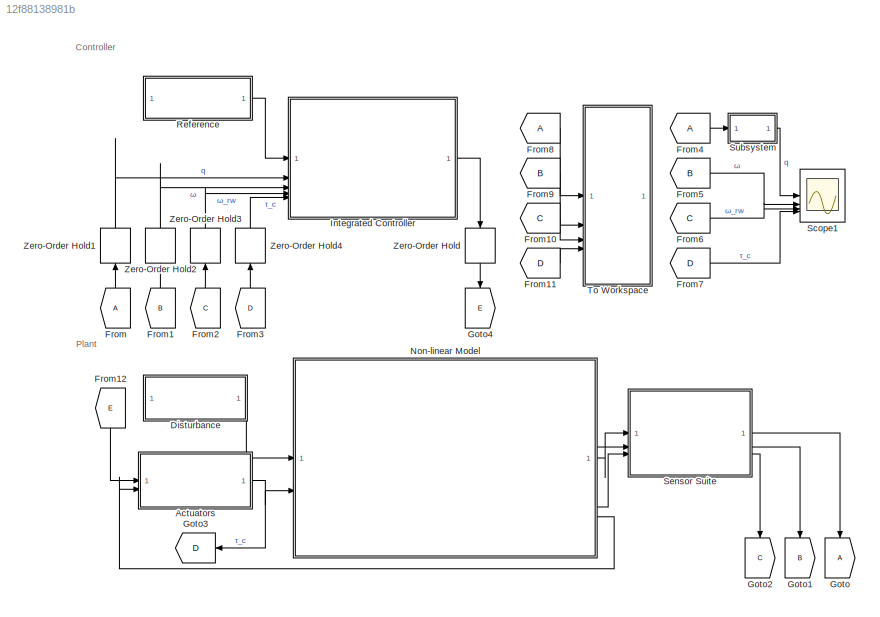
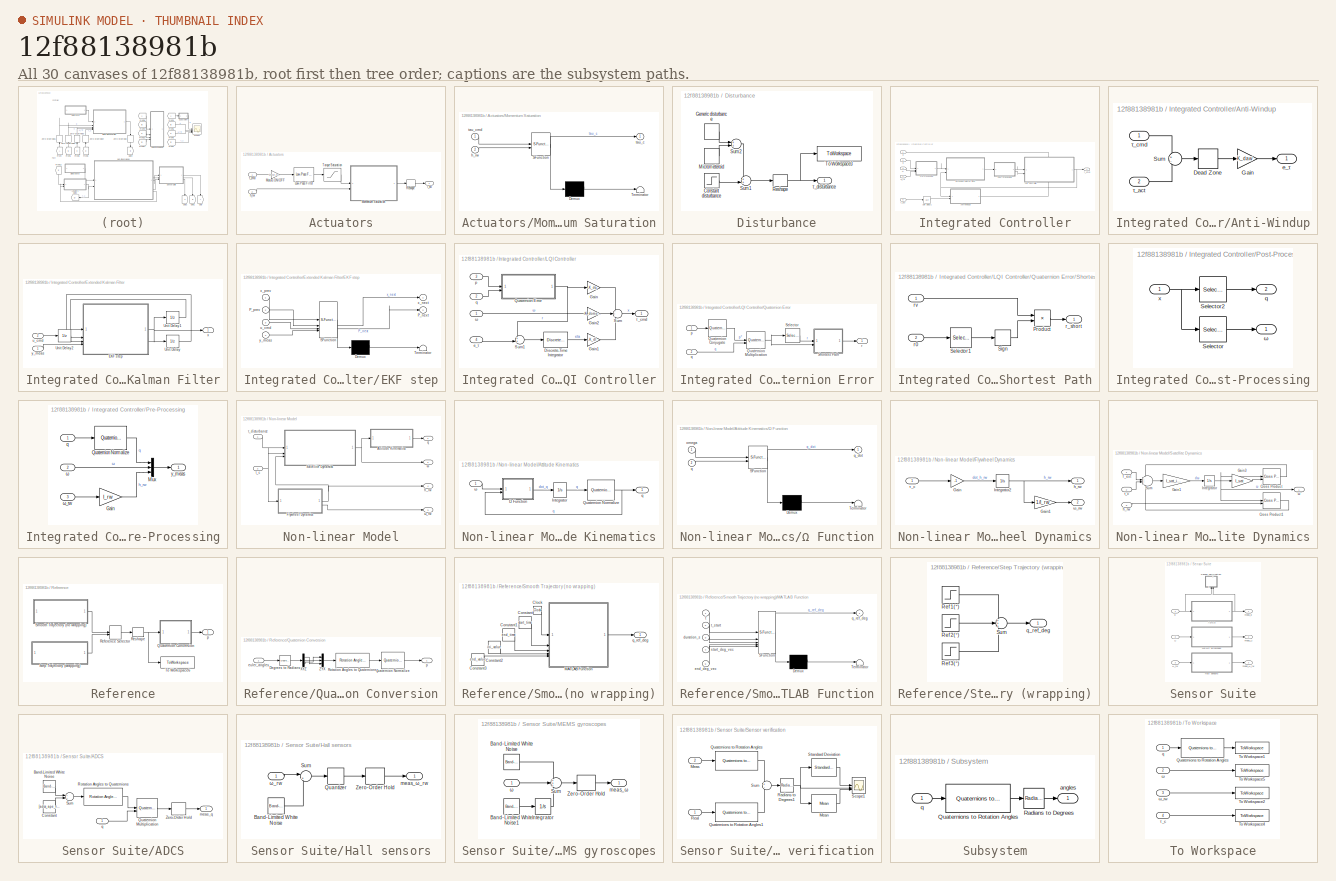
[diagram: thumbnail index - all 30 canvases of the model, root first then tree order]
MODEL slx_12f88138981b
KIND model
CONFIG AbsTol = auto
CONFIG EnableMultiTasking = off
CONFIG FixedStep = 1e-3
CONFIG MaxStep = auto
CONFIG MinStep = auto
CONFIG RelTol = 1e-3
CONFIG SampleTimeConstraint = Unconstrained
CONFIG SolverName = VariableStepAuto
CONFIG StartTime = 0.0
CONFIG StopTime = 100
BLOCK [SubSystem] Actuators
  NameLocation = top
BLOCK [Gain] Actuators/ Motors ON//OFF
  Commented = through
  Gain = motor_mask
  Multiplication = Matrix(K*u)
BLOCK [Reference] Actuators/Low-Pass Filter  REF=eeGeneralControl/Low-Pass Filter
(Discrete or Continuous)
  LibrarySourceBlock = ee_sl_lib/General Control/Low-Pass Filter\n(Discrete or Continuous)
  SourceBlock = eeGeneralControl/Low-Pass Filter\n(Discrete or Continuous)
  SourceType = Low-Pass Filter (Discrete or Continuous)
BLOCK [SubSystem] Actuators/Momentum Saturation
  ErrorFcn = Stateflow.Translate.translate
  PermitHierarchicalResolution = ExplicitOnly
  SFBlockType = MATLAB Function
  TreatAsAtomicUnit = on
BLOCK [Demux] Actuators/Momentum Saturation/ Demux 
  Outputs = 1
BLOCK [S-Function] Actuators/Momentum Saturation/ SFunction 
  EnableBusSupport = on
  FunctionName = sf_sfun
  PortCounts = [2 2]
  SFcnIsStateOwnerBlock = off
  SFunctionDeploymentMode = off
  Tag = Stateflow S-Function 2
BLOCK [Terminator] Actuators/Momentum Saturation/ Terminator 
BLOCK [Inport] Actuators/Momentum Saturation/h_rw
  Port = 2
BLOCK [Outport] Actuators/Momentum Saturation/tau_c
BLOCK [Inport] Actuators/Momentum Saturation/tau_cmd
BLOCK [Reshape] Actuators/Reshape
BLOCK [Saturate] Actuators/Torque Saturation
  LowerLimit = -0.0002
  UpperLimit = 0.0002
BLOCK [Inport] Actuators/h_rw
  Port = 2
BLOCK [Outport] Actuators/τ_act
BLOCK [Inport] Actuators/τ_cmd
BLOCK [SubSystem] Disturbance
  NameLocation = top
BLOCK [Step] Disturbance/ Constant disturbance
  After = disturb_const
  Before = [0, 0, 0]
  NameLocation = left
  SampleTime = 0
  Time = 0
BLOCK [DiscretePulseGenerator] Disturbance/ Micrometeroid
  Amplitude = disturb_force1
  NameLocation = left
  Period = 300
  PhaseDelay = t_disturb1
  PulseType = Time based
  PulseWidth = d_disturb1
BLOCK [DiscretePulseGenerator] Disturbance/Generic disturbance
  Amplitude = disturb_force2
  NameLocation = left
  Period = 100
  PhaseDelay = t_disturb2
  PulseType = Time based
  PulseWidth = d_distub2
BLOCK [Reshape] Disturbance/Reshape
BLOCK [Sum] Disturbance/Sum1
  Inputs = ++|
BLOCK [Sum] Disturbance/Sum2
BLOCK [ToWorkspace] Disturbance/To Workspace3
  FixptAsFi = on
  MaxDataPoints = inf
  SampleTime = -1
  SaveFormat = Timeseries
  VariableName = T_ext
BLOCK [Outport] Disturbance/τ_disturbance
BLOCK [From] From
  NameLocation = right
BLOCK [From] From1
  GotoTag = B
  NameLocation = right
BLOCK [From] From10
  GotoTag = C
BLOCK [From] From11
  GotoTag = D
  NameLocation = top
BLOCK [From] From12
  GotoTag = E
  NameLocation = left
BLOCK [From] From2
  GotoTag = C
  NameLocation = right
BLOCK [From] From3
  GotoTag = D
  NameLocation = right
BLOCK [From] From4
BLOCK [From] From5
  GotoTag = B
BLOCK [From] From6
  GotoTag = C
BLOCK [From] From7
  GotoTag = D
BLOCK [From] From8
BLOCK [From] From9
  GotoTag = B
BLOCK [Goto] Goto
  NameLocation = left
BLOCK [Goto] Goto1
  GotoTag = B
  NameLocation = left
BLOCK [Goto] Goto2
  GotoTag = C
  NameLocation = left
BLOCK [Goto] Goto3
  GotoTag = D
  NameLocation = top
BLOCK [Goto] Goto4
  GotoTag = E
  NameLocation = left
BLOCK [SubSystem] Integrated Controller
  NameLocation = top
  SystemSampleTime = dt
  TreatAsAtomicUnit = on
BLOCK [SubSystem] Integrated Controller/Anti-Windup
BLOCK [DeadZone] Integrated Controller/Anti-Windup/Dead Zone
  LowerValue = -0.001e-3
  UpperValue = 0.001e-3
BLOCK [Gain] Integrated Controller/Anti-Windup/Gain
  Gain = K_daw
  Multiplication = Matrix(K*u)
BLOCK [Sum] Integrated Controller/Anti-Windup/Sum
  Inputs = +-
BLOCK [Outport] Integrated Controller/Anti-Windup/e_τ
BLOCK [Inport] Integrated Controller/Anti-Windup/τ_act
  Port = 2
BLOCK [Inport] Integrated Controller/Anti-Windup/τ_cmd
BLOCK [SubSystem] Integrated Controller/Extended Kalman Filter
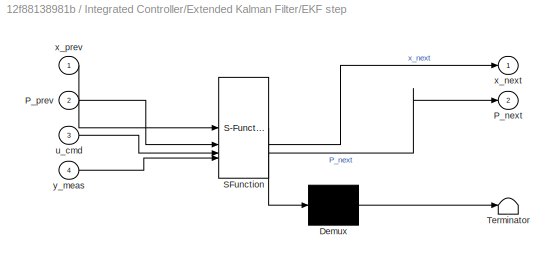
BLOCK [SubSystem] Integrated Controller/Extended Kalman Filter/EKF step
  ErrorFcn = Stateflow.Translate.translate
  PermitHierarchicalResolution = ExplicitOnly
  SFBlockType = MATLAB Function
  TreatAsAtomicUnit = on
BLOCK [Demux] Integrated Controller/Extended Kalman Filter/EKF step/ Demux 
  Outputs = 1
BLOCK [S-Function] Integrated Controller/Extended Kalman Filter/EKF step/ SFunction 
  EnableBusSupport = on
  FunctionName = sf_sfun
  Parameters = I_sat,I_sat_inv,Q_noise,R_noise,dt
  PortCounts = [4 3]
  SFcnIsStateOwnerBlock = off
  SFunctionDeploymentMode = off
  Tag = Stateflow S-Function 4
BLOCK [Terminator] Integrated Controller/Extended Kalman Filter/EKF step/ Terminator 
BLOCK [Outport] Integrated Controller/Extended Kalman Filter/EKF step/P_next
  Port = 2
BLOCK [Inport] Integrated Controller/Extended Kalman Filter/EKF step/P_prev
  Port = 2
BLOCK [Inport] Integrated Controller/Extended Kalman Filter/EKF step/u_cmd
  Port = 3
BLOCK [Outport] Integrated Controller/Extended Kalman Filter/EKF step/x_next
BLOCK [Inport] Integrated Controller/Extended Kalman Filter/EKF step/x_prev
BLOCK [Inport] Integrated Controller/Extended Kalman Filter/EKF step/y_meas
  Port = 4
BLOCK [UnitDelay] Integrated Controller/Extended Kalman Filter/Unit Delay
  HasFrameUpgradeWarning = on
  InitialCondition = 1e-3 * eye(10)
  SampleTime = -1
BLOCK [UnitDelay] Integrated Controller/Extended Kalman Filter/Unit Delay1
  HasFrameUpgradeWarning = on
  InitialCondition = [1;0;0;0; 0;0;0; 0;0;0]
  SampleTime = -1
BLOCK [UnitDelay] Integrated Controller/Extended Kalman Filter/Unit Delay2
  HasFrameUpgradeWarning = on
  InitialCondition = [0; 0; 0]
  SampleTime = -1
BLOCK [Inport] Integrated Controller/Extended Kalman Filter/u_cmd
  Port = 2
BLOCK [Outport] Integrated Controller/Extended Kalman Filter/x
BLOCK [Inport] Integrated Controller/Extended Kalman Filter/y_meas
BLOCK [SubSystem] Integrated Controller/LQI Controller
  PortSchema = {"entries":[{"content":{"sides":[{"content":{"connectorIds":["In1","In2"]},"type":"ConnectorPlacement.EquallySpacedRectSide","uuid":"2ebfe950-d43d-47a2-a975-d9ee473367e9"},{"content":{"connectorIds":["Out1"],"side":"RIGHT"},"type":"ConnectorPlacement.EquallySpacedRectSide","uuid":"47fee382-8d93-4b13-ac31-5bc139d18ea2"},{"content":{"connectorIds":["In3"],"side":"TOP"},"type":"ConnectorPlacement.Equ...<+400ch>
BLOCK [DiscreteIntegrator] Integrated Controller/LQI Controller/Discrete-Time Integrator
  ICPrevOutput = DiscIntNeverNeededParam
  ICPrevScaledInput = DiscIntNeverNeededParam
  InitialCondition = [0;0;0]
  InitialConditionSetting = Auto
  LowerSaturationLimit = -0.2e-3
  SampleTime = -1
  UpperSaturationLimit = 0.2e-3
BLOCK [Gain] Integrated Controller/LQI Controller/Gain
  Gain = -K_dq
  Multiplication = Matrix(K*u)
BLOCK [Gain] Integrated Controller/LQI Controller/Gain1
  Gain = -K_dI
  Multiplication = Matrix(K*u)
BLOCK [Gain] Integrated Controller/LQI Controller/Gain2
  Gain = -K_domega
  Multiplication = Matrix(K*u)
BLOCK [SubSystem] Integrated Controller/LQI Controller/Quaternion Error
BLOCK [Reference] Integrated Controller/LQI Controller/Quaternion Error/Quaternion Conjugate  REF=aerolibutil/Quaternion
Conjugate
  SourceBlock = aerolibutil/Quaternion\nConjugate
  SourceType = Quaternion Conjugate
BLOCK [Reference] Integrated Controller/LQI Controller/Quaternion Error/Quaternion Multiplication  REF=aerolibutil/Quaternion
Multiplication
  SourceBlock = aerolibutil/Quaternion\nMultiplication
  SourceType = Quaternion Multiplication
BLOCK [Selector] Integrated Controller/LQI Controller/Quaternion Error/Selector
  IndexOptions = Index vector (dialog)
  Indices = [2 3 4]
  InputPortWidth = 4
  OutputSizes = 1
BLOCK [SubSystem] Integrated Controller/LQI Controller/Quaternion Error/Shortest Path
BLOCK [Product] Integrated Controller/LQI Controller/Quaternion Error/Shortest Path/Product
BLOCK [Selector] Integrated Controller/LQI Controller/Quaternion Error/Shortest Path/Selector1
  IndexOptions = Index vector (dialog)
  Indices = [1]
  InputPortWidth = 4
  OutputSizes = 1
BLOCK [Signum] Integrated Controller/LQI Controller/Quaternion Error/Shortest Path/Sign
BLOCK [Inport] Integrated Controller/LQI Controller/Quaternion Error/Shortest Path/r0
  Port = 2
BLOCK [Outport] Integrated Controller/LQI Controller/Quaternion Error/Shortest Path/r_short
BLOCK [Inport] Integrated Controller/LQI Controller/Quaternion Error/Shortest Path/rv
BLOCK [Inport] Integrated Controller/LQI Controller/Quaternion Error/p
BLOCK [Inport] Integrated Controller/LQI Controller/Quaternion Error/q
  Port = 2
BLOCK [Outport] Integrated Controller/LQI Controller/Quaternion Error/r
BLOCK [Sum] Integrated Controller/LQI Controller/Sum
  Inputs = +++
BLOCK [Sum] Integrated Controller/LQI Controller/Sum1
  Inputs = ++|
BLOCK [Inport] Integrated Controller/LQI Controller/e_τ
  Port = 4
BLOCK [Inport] Integrated Controller/LQI Controller/p
  Port = 3
BLOCK [Inport] Integrated Controller/LQI Controller/q
  Port = 2
BLOCK [Outport] Integrated Controller/LQI Controller/τ_cmd
BLOCK [Inport] Integrated Controller/LQI Controller/ω
BLOCK [SubSystem] Integrated Controller/Post-Processing
BLOCK [Selector] Integrated Controller/Post-Processing/Selector
  IndexOptions = Index vector (dialog)
  Indices = [5 6 7]
  InputPortWidth = 10
  OutputSizes = 1
BLOCK [Selector] Integrated Controller/Post-Processing/Selector2
  IndexOptions = Index vector (dialog)
  Indices = [1 2 3 4]
  InputPortWidth = 10
  OutputSizes = 1
BLOCK [Outport] Integrated Controller/Post-Processing/q
  Port = 2
BLOCK [Inport] Integrated Controller/Post-Processing/x
  NameLocation = top
BLOCK [Outport] Integrated Controller/Post-Processing/ω
BLOCK [SubSystem] Integrated Controller/Pre-Processing
BLOCK [Gain] Integrated Controller/Pre-Processing/Gain
  Gain = I_rw
BLOCK [Mux] Integrated Controller/Pre-Processing/Mux
  DisplayOption = bar
  Inputs = 3
BLOCK [Reference] Integrated Controller/Pre-Processing/Quaternion Normalize  REF=sharedutil/Quaternion
Normalize
  LibrarySourceBlock = aerolibutil/Quaternion\nNormalize
  SourceBlock = sharedutil/Quaternion\nNormalize
  SourceType = Quaternion Normalize
BLOCK [Inport] Integrated Controller/Pre-Processing/q
BLOCK [Outport] Integrated Controller/Pre-Processing/y_meas
BLOCK [Inport] Integrated Controller/Pre-Processing/ω
  Port = 2
BLOCK [Inport] Integrated Controller/Pre-Processing/ω_rw
  Port = 3
BLOCK [UnitDelay] Integrated Controller/Unit Delay1
  HasFrameUpgradeWarning = on
  SampleTime = -1
BLOCK [Inport] Integrated Controller/p
BLOCK [Inport] Integrated Controller/q
  Port = 2
BLOCK [Inport] Integrated Controller/τ_act
  Port = 5
BLOCK [Outport] Integrated Controller/τ_cmd
BLOCK [Inport] Integrated Controller/ω
  Port = 3
BLOCK [Inport] Integrated Controller/ω_rw
  Port = 4
BLOCK [SubSystem] Non-linear Model
BLOCK [SubSystem] Non-linear Model/Attitude Kinematics
BLOCK [Integrator] Non-linear Model/Attitude Kinematics/Integrator
  InitialCondition = quat0
BLOCK [Reference] Non-linear Model/Attitude Kinematics/Quaternion Normalize  REF=sharedutil/Quaternion
Normalize
  LibrarySourceBlock = aerolibutil/Quaternion\nNormalize
  SourceBlock = sharedutil/Quaternion\nNormalize
  SourceType = Quaternion Normalize
BLOCK [Outport] Non-linear Model/Attitude Kinematics/q
BLOCK [SubSystem] Non-linear Model/Attitude Kinematics/Ω Function
  ErrorFcn = Stateflow.Translate.translate
  PermitHierarchicalResolution = ExplicitOnly
  SFBlockType = MATLAB Function
  TreatAsAtomicUnit = on
BLOCK [Demux] Non-linear Model/Attitude Kinematics/Ω Function/ Demux 
  Outputs = 1
BLOCK [S-Function] Non-linear Model/Attitude Kinematics/Ω Function/ SFunction 
  EnableBusSupport = on
  FunctionName = sf_sfun
  PortCounts = [2 2]
  SFcnIsStateOwnerBlock = off
  SFunctionDeploymentMode = off
  Tag = Stateflow S-Function 1
BLOCK [Terminator] Non-linear Model/Attitude Kinematics/Ω Function/ Terminator 
BLOCK [Inport] Non-linear Model/Attitude Kinematics/Ω Function/omega
BLOCK [Inport] Non-linear Model/Attitude Kinematics/Ω Function/q
  Port = 2
BLOCK [Outport] Non-linear Model/Attitude Kinematics/Ω Function/q_dot
BLOCK [Inport] Non-linear Model/Attitude Kinematics/ω
BLOCK [SubSystem] Non-linear Model/Flywheel Dynamics
BLOCK [Gain] Non-linear Model/Flywheel Dynamics/Gain
  Gain = -1
BLOCK [Gain] Non-linear Model/Flywheel Dynamics/Gain1
  Gain = 1/I_rw
BLOCK [Integrator] Non-linear Model/Flywheel Dynamics/Integrator2
  InitialCondition = h_rw0
BLOCK [Outport] Non-linear Model/Flywheel Dynamics/h_rw
BLOCK [Inport] Non-linear Model/Flywheel Dynamics/τ_c
BLOCK [Outport] Non-linear Model/Flywheel Dynamics/ω_rw
  Port = 2
BLOCK [SubSystem] Non-linear Model/Satellite Dynamics
BLOCK [Reference] Non-linear Model/Satellite Dynamics/Cross Product  REF=matrix_library/Cross Product
  LibrarySourceBlock = simulink/Matrix\nOperations/Cross Product
  SourceBlock = matrix_library/Cross Product
  SourceType = CrossProduct
BLOCK [Reference] Non-linear Model/Satellite Dynamics/Cross Product1  REF=matrix_library/Cross Product
  LibrarySourceBlock = simulink/Matrix\nOperations/Cross Product
  SourceBlock = matrix_library/Cross Product
  SourceType = CrossProduct
BLOCK [Gain] Non-linear Model/Satellite Dynamics/Gain1
  Gain = I_sat_inv
  Multiplication = Matrix(K*u)
BLOCK [Gain] Non-linear Model/Satellite Dynamics/Gain3
  Gain = I_sat
  Multiplication = Matrix(K*u)
BLOCK [Integrator] Non-linear Model/Satellite Dynamics/Integrator
  InitialCondition = omega0
BLOCK [Sum] Non-linear Model/Satellite Dynamics/Sum
  Inputs = -++-
BLOCK [Inport] Non-linear Model/Satellite Dynamics/T_ext
BLOCK [Inport] Non-linear Model/Satellite Dynamics/h_rw
  Port = 3
BLOCK [Inport] Non-linear Model/Satellite Dynamics/τ_c
  Port = 2
BLOCK [Outport] Non-linear Model/Satellite Dynamics/ω
BLOCK [Outport] Non-linear Model/h_rw
  Port = 4
BLOCK [Outport] Non-linear Model/q
BLOCK [Inport] Non-linear Model/τ_c
  Port = 2
BLOCK [Inport] Non-linear Model/τ_disturbance
BLOCK [Outport] Non-linear Model/ω
  Port = 2
BLOCK [Outport] Non-linear Model/ω_rw
  Port = 3
BLOCK [SubSystem] Reference
  NameLocation = top
BLOCK [SubSystem] Reference/Quaternion Conversion
BLOCK [Reference] Reference/Quaternion Conversion/Degrees to Radians  REF=simulink_extras/Transformations/Degrees to
Radians
  SourceBlock = simulink_extras/Transformations/Degrees to\nRadians
  SourceType = DegreesToRadians
BLOCK [Reference] Reference/Quaternion Conversion/Quaternion Normalize  REF=sharedutil/Quaternion
Normalize
  LibrarySourceBlock = aerolibutil/Quaternion\nNormalize
  SourceBlock = sharedutil/Quaternion\nNormalize
  SourceType = Quaternion Normalize
BLOCK [Reference] Reference/Quaternion Conversion/Rotation Angles to Quaternions  REF=sharedtransform/Rotation Angles to Quaternions
  AttributesFormatString = Rotation Order: %<rotationOrder>
  LibrarySourceBlock = aerolibtransform2/Rotation Angles to Quaternions
  SourceBlock = sharedtransform/Rotation Angles to Quaternions
  SourceType = Ang2Quat
BLOCK [Demux] Reference/Quaternion Conversion/XYZ
  NameLocation = top
  Outputs = 3
BLOCK [Mux] Reference/Quaternion Conversion/ZYX
  DisplayOption = bar
  Inputs = 3
  NameLocation = top
BLOCK [Inport] Reference/Quaternion Conversion/euler_angles
BLOCK [Outport] Reference/Quaternion Conversion/p
BLOCK [ManualSwitch] Reference/Reference Selector
  CurrentSetting = 0
  NameLocation = top
BLOCK [Reshape] Reference/Reshape
BLOCK [SubSystem] Reference/Smooth Trajectory (no wrapping)
BLOCK [Clock] Reference/Smooth Trajectory (no wrapping)/Clock
BLOCK [Constant] Reference/Smooth Trajectory (no wrapping)/Constant
  Value = start_time
BLOCK [Constant] Reference/Smooth Trajectory (no wrapping)/Constant1
  Value = end_time
BLOCK [Constant] Reference/Smooth Trajectory (no wrapping)/Constant2
  Value = ini_value
BLOCK [Constant] Reference/Smooth Trajectory (no wrapping)/Constant3
  Value = end_value
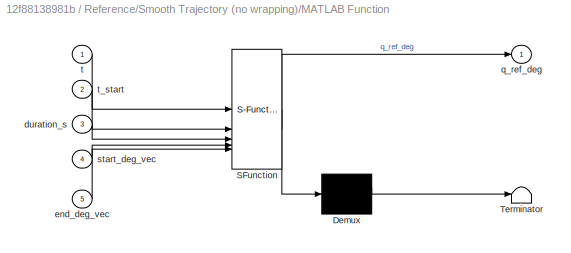
BLOCK [SubSystem] Reference/Smooth Trajectory (no wrapping)/MATLAB Function
  ErrorFcn = Stateflow.Translate.translate
  PermitHierarchicalResolution = ExplicitOnly
  SFBlockType = MATLAB Function
  TreatAsAtomicUnit = on
BLOCK [Demux] Reference/Smooth Trajectory (no wrapping)/MATLAB Function/ Demux 
  Outputs = 1
BLOCK [S-Function] Reference/Smooth Trajectory (no wrapping)/MATLAB Function/ SFunction 
  EnableBusSupport = on
  FunctionName = sf_sfun
  PortCounts = [5 2]
  SFcnIsStateOwnerBlock = off
  SFunctionDeploymentMode = off
  Tag = Stateflow S-Function 6
BLOCK [Terminator] Reference/Smooth Trajectory (no wrapping)/MATLAB Function/ Terminator 
BLOCK [Inport] Reference/Smooth Trajectory (no wrapping)/MATLAB Function/duration_s
  Port = 3
BLOCK [Inport] Reference/Smooth Trajectory (no wrapping)/MATLAB Function/end_deg_vec
  Port = 5
BLOCK [Outport] Reference/Smooth Trajectory (no wrapping)/MATLAB Function/q_ref_deg
BLOCK [Inport] Reference/Smooth Trajectory (no wrapping)/MATLAB Function/start_deg_vec
  Port = 4
BLOCK [Inport] Reference/Smooth Trajectory (no wrapping)/MATLAB Function/t
BLOCK [Inport] Reference/Smooth Trajectory (no wrapping)/MATLAB Function/t_start
  Port = 2
BLOCK [Outport] Reference/Smooth Trajectory (no wrapping)/q_ref_deg
BLOCK [SubSystem] Reference/Step Trajectory (wrapping)
BLOCK [Step] Reference/Step Trajectory (wrapping)/Ref 1(°)
  After = end_step1
  Before = ini_step1
  SampleTime = 0
  Time = t_step1
BLOCK [Step] Reference/Step Trajectory (wrapping)/Ref 2(°)
  After = end_step2
  Before = ini_step2
  SampleTime = 0
  Time = t_step2
BLOCK [Step] Reference/Step Trajectory (wrapping)/Ref 3(°)
  After = end_step3
  Before = ini_step3
  SampleTime = 0
  Time = t_step3
BLOCK [Sum] Reference/Step Trajectory (wrapping)/Sum
  Inputs = +++
BLOCK [Outport] Reference/Step Trajectory (wrapping)/q_ref_deg
BLOCK [ToWorkspace] Reference/To Workspace6
  FixptAsFi = on
  MaxDataPoints = inf
  SampleTime = -1
  SaveFormat = Timeseries
  VariableName = ref
BLOCK [Outport] Reference/p
BLOCK [Scope] Scope1
  Floating = off
  NumInputPorts = 4
  ScopeSpecificationString = Simulink.scopes.TimeScopeBlockCfg('CurrentConfiguration', extmgr.ConfigurationSet(extmgr.Configuration('Core','General UI',true,'FigureColor',[1 1 1]),extmgr.Configuration('Core','Source UI',true),extmgr.Configuration('Sources','WiredSimulink',true,'DataLoggingVariableName','ScopeData1'),extmgr.Configuration('Visuals','Time Domain',true,'SerializedDisplays',{struct('MinYLimReal','-224.99997','MaxY...<+5181ch>
BLOCK [SubSystem] Sensor Suite
  NameLocation = top
  SystemSampleTime = 0.001
BLOCK [SubSystem] Sensor Suite/ADCS
BLOCK [Reference] Sensor Suite/ADCS/Band-Limited White Noise  REF=simulink/Sources/Band-Limited
White Noise
  SourceBlock = simulink/Sources/Band-Limited\nWhite Noise
  SourceType = Band-Limited White Noise.
BLOCK [Constant] Sensor Suite/ADCS/Constant
  Value = [adcs_ape_rad; adcs_ape_rad; adcs_ape_rad]
BLOCK [Reference] Sensor Suite/ADCS/Quaternion Multiplication  REF=aerolibutil/Quaternion
Multiplication
  SourceBlock = aerolibutil/Quaternion\nMultiplication
  SourceType = Quaternion Multiplication
BLOCK [Reference] Sensor Suite/ADCS/Rotation Angles to Quaternions  REF=sharedtransform/Rotation Angles to Quaternions
  AttributesFormatString = Rotation Order: %<rotationOrder>
  LibrarySourceBlock = aerolibtransform2/Rotation Angles to Quaternions
  SourceBlock = sharedtransform/Rotation Angles to Quaternions
  SourceType = Ang2Quat
BLOCK [Sum] Sensor Suite/ADCS/Sum
BLOCK [ZeroOrderHold] Sensor Suite/ADCS/Zero-Order Hold
  SampleTime = adcs_sample_time
BLOCK [Outport] Sensor Suite/ADCS/meas_q
BLOCK [Inport] Sensor Suite/ADCS/q
BLOCK [SubSystem] Sensor Suite/Hall sensors
BLOCK [Reference] Sensor Suite/Hall sensors/Band-Limited White Noise  REF=simulink/Sources/Band-Limited
White Noise
  SourceBlock = simulink/Sources/Band-Limited\nWhite Noise
  SourceType = Band-Limited White Noise.
BLOCK [Quantizer] Sensor Suite/Hall sensors/Quantizer
  QuantizationInterval = rw_quantization_interval
BLOCK [Sum] Sensor Suite/Hall sensors/Sum
  Inputs = |++
BLOCK [ZeroOrderHold] Sensor Suite/Hall sensors/Zero-Order Hold
  SampleTime = rw_sample_time
BLOCK [Outport] Sensor Suite/Hall sensors/meas_ω_rw
BLOCK [Inport] Sensor Suite/Hall sensors/ω_rw
BLOCK [SubSystem] Sensor Suite/MEMS gyroscopes
BLOCK [Reference] Sensor Suite/MEMS gyroscopes/Band-Limited White Noise  REF=simulink/Sources/Band-Limited
White Noise
  SourceBlock = simulink/Sources/Band-Limited\nWhite Noise
  SourceType = Band-Limited White Noise.
BLOCK [Reference] Sensor Suite/MEMS gyroscopes/Band-Limited White Noise1  REF=simulink/Sources/Band-Limited
White Noise
  SourceBlock = simulink/Sources/Band-Limited\nWhite Noise
  SourceType = Band-Limited White Noise.
BLOCK [Integrator] Sensor Suite/MEMS gyroscopes/Integrator
  InitialCondition = [0, 0, 0]
BLOCK [Sum] Sensor Suite/MEMS gyroscopes/Sum
  Inputs = +++
BLOCK [ZeroOrderHold] Sensor Suite/MEMS gyroscopes/Zero-Order Hold
  SampleTime = gyro_sample_time
BLOCK [Outport] Sensor Suite/MEMS gyroscopes/meas_ω
BLOCK [Inport] Sensor Suite/MEMS gyroscopes/ω
BLOCK [SubSystem] Sensor Suite/Sensor verification
  NameLocation = top
BLOCK [Reference] Sensor Suite/Sensor verification/Mean  REF=dspstat3/Mean
  SourceBlock = dspstat3/Mean
  SourceType = Mean
  UserDataPersistent = on
BLOCK [Inport] Sensor Suite/Sensor verification/Meas
  Port = 2
BLOCK [Reference] Sensor Suite/Sensor verification/Quaternions to Rotation Angles  REF=sharedtransform/Quaternions to Rotation Angles
  AttributesFormatString = Rotation Order: %<rotationOrder>
  LibrarySourceBlock = aerolibtransform2/Quaternions to Rotation Angles
  SourceBlock = sharedtransform/Quaternions to Rotation Angles
  SourceType = Quat2Ang
BLOCK [Reference] Sensor Suite/Sensor verification/Quaternions to Rotation Angles1  REF=sharedtransform/Quaternions to Rotation Angles
  AttributesFormatString = Rotation Order: %<rotationOrder>
  LibrarySourceBlock = aerolibtransform2/Quaternions to Rotation Angles
  SourceBlock = sharedtransform/Quaternions to Rotation Angles
  SourceType = Quat2Ang
BLOCK [Reference] Sensor Suite/Sensor verification/Radians to Degrees1  REF=simulink_extras/Transformations/Radians
to Degrees
  SourceBlock = simulink_extras/Transformations/Radians\nto Degrees
  SourceType = RadiansToDegrees
BLOCK [Inport] Sensor Suite/Sensor verification/Real
  NameLocation = top
BLOCK [Scope] Sensor Suite/Sensor verification/Scope1
  Floating = off
  NumInputPorts = 3
  ScopeSpecificationString = Simulink.scopes.TimeScopeBlockCfg('CurrentConfiguration', extmgr.ConfigurationSet(extmgr.Configuration('Core','General UI',true,'FigureColor',[1 1 1]),extmgr.Configuration('Core','Source UI',true),extmgr.Configuration('Sources','WiredSimulink',true,'DataLoggingVariableName','ScopeData2'),extmgr.Configuration('Visuals','Time Domain',true,'SerializedDisplays',{struct('MinYLimReal','-0.00456','MaxYLi...<+3585ch>
BLOCK [Reference] Sensor Suite/Sensor verification/Standard Deviation  REF=dspstat3/Standard
Deviation
  SourceBlock = dspstat3/Standard\nDeviation
  SourceType = Standard Deviation
  UserDataPersistent = on
BLOCK [Sum] Sensor Suite/Sensor verification/Sum
  Inputs = +-
BLOCK [Outport] Sensor Suite/meas_q
BLOCK [Outport] Sensor Suite/meas_ω
  Port = 2
BLOCK [Outport] Sensor Suite/meas_ω_rw
  Port = 3
BLOCK [Inport] Sensor Suite/q
BLOCK [Inport] Sensor Suite/ω
  Port = 2
BLOCK [Inport] Sensor Suite/ω_rw
  Port = 3
BLOCK [SubSystem] Subsystem
BLOCK [Reference] Subsystem/Quaternions to Rotation Angles  REF=sharedtransform/Quaternions to Rotation Angles
  AttributesFormatString = Rotation Order: %<rotationOrder>
  LibrarySourceBlock = aerolibtransform2/Quaternions to Rotation Angles
  SourceBlock = sharedtransform/Quaternions to Rotation Angles
  SourceType = Quat2Ang
BLOCK [Reference] Subsystem/Radians to Degrees  REF=simulink_extras/Transformations/Radians
to Degrees
  SourceBlock = simulink_extras/Transformations/Radians\nto Degrees
  SourceType = RadiansToDegrees
BLOCK [Outport] Subsystem/angles
BLOCK [Inport] Subsystem/q
BLOCK [SubSystem] To Workspace
BLOCK [Reference] To Workspace/Quaternions to Rotation Angles  REF=sharedtransform/Quaternions to Rotation Angles
  AttributesFormatString = Rotation Order: %<rotationOrder>
  LibrarySourceBlock = aerolibtransform2/Quaternions to Rotation Angles
  SourceBlock = sharedtransform/Quaternions to Rotation Angles
  SourceType = Quat2Ang
BLOCK [ToWorkspace] To Workspace/To Workspace1
  FixptAsFi = on
  MaxDataPoints = inf
  SampleTime = -1
  SaveFormat = Timeseries
  VariableName = angles
BLOCK [ToWorkspace] To Workspace/To Workspace2
  FixptAsFi = on
  MaxDataPoints = inf
  NameLocation = right
  SampleTime = -1
  SaveFormat = Timeseries
  VariableName = omega_rw
BLOCK [ToWorkspace] To Workspace/To Workspace4
  FixptAsFi = on
  MaxDataPoints = inf
  SampleTime = -1
  SaveFormat = Timeseries
  VariableName = tau_c
BLOCK [ToWorkspace] To Workspace/To Workspace5
  FixptAsFi = on
  MaxDataPoints = inf
  NameLocation = right
  SampleTime = -1
  SaveFormat = Timeseries
  VariableName = omega_sat
BLOCK [Inport] To Workspace/q
BLOCK [Inport] To Workspace/τ_c
  Port = 4
BLOCK [Inport] To Workspace/ω
  Port = 2
BLOCK [Inport] To Workspace/ω_rw
  Port = 3
BLOCK [ZeroOrderHold] Zero-Order Hold
  NameLocation = left
  SampleTime = dt
BLOCK [ZeroOrderHold] Zero-Order Hold1
  NameLocation = right
  SampleTime = dt
BLOCK [ZeroOrderHold] Zero-Order Hold2
  NameLocation = right
  SampleTime = dt
BLOCK [ZeroOrderHold] Zero-Order Hold3
  NameLocation = right
  SampleTime = dt
BLOCK [ZeroOrderHold] Zero-Order Hold4
  NameLocation = right
  SampleTime = dt
ANNOTATION (root): Controller
ANNOTATION (root): Plant
LINE Actuators/ Motors ON//OFF:1 -> Actuators/Low-Pass Filter:1
LINE Actuators/Low-Pass Filter:1 -> Actuators/Torque Saturation:1
LINE Actuators/Momentum Saturation:1 -> Actuators/Reshape:1
LINE Actuators/Reshape:1 -> Actuators/τ_act:1
LINE Actuators/Torque Saturation:1 -> Actuators/Momentum Saturation:1
LINE Actuators/h_rw:1 -> Actuators/Momentum Saturation:2
LINE Actuators/τ_cmd:1 -> Actuators/ Motors ON//OFF:1
NET Actuators:1 -> Goto3:1, Non-linear Model:2
LINE Disturbance/ Constant disturbance:1 -> Disturbance/Sum1:2
LINE Disturbance/ Micrometeroid:1 -> Disturbance/Sum2:2
LINE Disturbance/Generic disturbance:1 -> Disturbance/Sum2:1
NET Disturbance/Reshape:1 -> Disturbance/To Workspace3:1, Disturbance/τ_disturbance:1
LINE Disturbance/Sum1:1 -> Disturbance/Reshape:1
LINE Disturbance/Sum2:1 -> Disturbance/Sum1:1
LINE Disturbance:1 -> Non-linear Model:1
LINE From10:1 -> To Workspace:3
LINE From11:1 -> To Workspace:4
LINE From12:1 -> Actuators:1
LINE From1:1 -> Zero-Order Hold2:1
LINE From2:1 -> Zero-Order Hold3:1
LINE From3:1 -> Zero-Order Hold4:1
LINE From4:1 -> Subsystem:1
LINE From5:1 -> Scope1:2
LINE From6:1 -> Scope1:3
LINE From7:1 -> Scope1:4
LINE From8:1 -> To Workspace:1
LINE From9:1 -> To Workspace:2
LINE From:1 -> Zero-Order Hold1:1
LINE Integrated Controller/Anti-Windup/Dead Zone:1 -> Integrated Controller/Anti-Windup/Gain:1
LINE Integrated Controller/Anti-Windup/Gain:1 -> Integrated Controller/Anti-Windup/e_τ:1
LINE Integrated Controller/Anti-Windup/Sum:1 -> Integrated Controller/Anti-Windup/Dead Zone:1
LINE Integrated Controller/Anti-Windup/τ_act:1 -> Integrated Controller/Anti-Windup/Sum:2
LINE Integrated Controller/Anti-Windup/τ_cmd:1 -> Integrated Controller/Anti-Windup/Sum:1
LINE Integrated Controller/Anti-Windup:1 -> Integrated Controller/LQI Controller:4
NET Integrated Controller/Extended Kalman Filter/EKF step:1 -> Integrated Controller/Extended Kalman Filter/Unit Delay1:1, Integrated Controller/Extended Kalman Filter/x:1
LINE Integrated Controller/Extended Kalman Filter/EKF step:2 -> Integrated Controller/Extended Kalman Filter/Unit Delay:1
LINE Integrated Controller/Extended Kalman Filter/Unit Delay1:1 -> Integrated Controller/Extended Kalman Filter/EKF step:1
LINE Integrated Controller/Extended Kalman Filter/Unit Delay2:1 -> Integrated Controller/Extended Kalman Filter/EKF step:3
LINE Integrated Controller/Extended Kalman Filter/Unit Delay:1 -> Integrated Controller/Extended Kalman Filter/EKF step:2
LINE Integrated Controller/Extended Kalman Filter/u_cmd:1 -> Integrated Controller/Extended Kalman Filter/Unit Delay2:1
LINE Integrated Controller/Extended Kalman Filter/y_meas:1 -> Integrated Controller/Extended Kalman Filter/EKF step:4
LINE Integrated Controller/Extended Kalman Filter:1 -> Integrated Controller/Post-Processing:1
LINE Integrated Controller/LQI Controller/Discrete-Time Integrator:1 -> Integrated Controller/LQI Controller/Gain1:1
LINE Integrated Controller/LQI Controller/Gain1:1 -> Integrated Controller/LQI Controller/Sum:3
LINE Integrated Controller/LQI Controller/Gain2:1 -> Integrated Controller/LQI Controller/Sum:2
LINE Integrated Controller/LQI Controller/Gain:1 -> Integrated Controller/LQI Controller/Sum:1
LINE Integrated Controller/LQI Controller/Quaternion Error/Quaternion Conjugate:1 -> Integrated Controller/LQI Controller/Quaternion Error/Quaternion Multiplication:1
NET Integrated Controller/LQI Controller/Quaternion Error/Quaternion Multiplication:1 -> Integrated Controller/LQI Controller/Quaternion Error/Selector:1, Integrated Controller/LQI Controller/Quaternion Error/Shortest Path:2
LINE Integrated Controller/LQI Controller/Quaternion Error/Selector:1 -> Integrated Controller/LQI Controller/Quaternion Error/Shortest Path:1
LINE Integrated Controller/LQI Controller/Quaternion Error/Shortest Path/Product:1 -> Integrated Controller/LQI Controller/Quaternion Error/Shortest Path/r_short:1
LINE Integrated Controller/LQI Controller/Quaternion Error/Shortest Path/Selector1:1 -> Integrated Controller/LQI Controller/Quaternion Error/Shortest Path/Sign:1
LINE Integrated Controller/LQI Controller/Quaternion Error/Shortest Path/Sign:1 -> Integrated Controller/LQI Controller/Quaternion Error/Shortest Path/Product:2
LINE Integrated Controller/LQI Controller/Quaternion Error/Shortest Path/r0:1 -> Integrated Controller/LQI Controller/Quaternion Error/Shortest Path/Selector1:1
LINE Integrated Controller/LQI Controller/Quaternion Error/Shortest Path/rv:1 -> Integrated Controller/LQI Controller/Quaternion Error/Shortest Path/Product:1
LINE Integrated Controller/LQI Controller/Quaternion Error/Shortest Path:1 -> Integrated Controller/LQI Controller/Quaternion Error/r:1
LINE Integrated Controller/LQI Controller/Quaternion Error/p:1 -> Integrated Controller/LQI Controller/Quaternion Error/Quaternion Conjugate:1
LINE Integrated Controller/LQI Controller/Quaternion Error/q:1 -> Integrated Controller/LQI Controller/Quaternion Error/Quaternion Multiplication:2
NET Integrated Controller/LQI Controller/Quaternion Error:1 -> Integrated Controller/LQI Controller/Gain:1, Integrated Controller/LQI Controller/Sum1:1
LINE Integrated Controller/LQI Controller/Sum1:1 -> Integrated Controller/LQI Controller/Discrete-Time Integrator:1
LINE Integrated Controller/LQI Controller/Sum:1 -> Integrated Controller/LQI Controller/τ_cmd:1
LINE Integrated Controller/LQI Controller/e_τ:1 -> Integrated Controller/LQI Controller/Sum1:2
LINE Integrated Controller/LQI Controller/p:1 -> Integrated Controller/LQI Controller/Quaternion Error:1
LINE Integrated Controller/LQI Controller/q:1 -> Integrated Controller/LQI Controller/Quaternion Error:2
LINE Integrated Controller/LQI Controller/ω:1 -> Integrated Controller/LQI Controller/Gain2:1
NET Integrated Controller/LQI Controller:1 -> Integrated Controller/Anti-Windup:1, Integrated Controller/Extended Kalman Filter:2, Integrated Controller/τ_cmd:1
LINE Integrated Controller/Post-Processing/Selector2:1 -> Integrated Controller/Post-Processing/q:1
LINE Integrated Controller/Post-Processing/Selector:1 -> Integrated Controller/Post-Processing/ω:1
NET Integrated Controller/Post-Processing/x:1 -> Integrated Controller/Post-Processing/Selector2:1, Integrated Controller/Post-Processing/Selector:1
LINE Integrated Controller/Post-Processing:1 -> Integrated Controller/LQI Controller:1
LINE Integrated Controller/Post-Processing:2 -> Integrated Controller/LQI Controller:2
LINE Integrated Controller/Pre-Processing/Gain:1 -> Integrated Controller/Pre-Processing/Mux:3
LINE Integrated Controller/Pre-Processing/Mux:1 -> Integrated Controller/Pre-Processing/y_meas:1
LINE Integrated Controller/Pre-Processing/Quaternion Normalize:1 -> Integrated Controller/Pre-Processing/Mux:1
LINE Integrated Controller/Pre-Processing/q:1 -> Integrated Controller/Pre-Processing/Quaternion Normalize:1
LINE Integrated Controller/Pre-Processing/ω:1 -> Integrated Controller/Pre-Processing/Mux:2
LINE Integrated Controller/Pre-Processing/ω_rw:1 -> Integrated Controller/Pre-Processing/Gain:1
LINE Integrated Controller/Pre-Processing:1 -> Integrated Controller/Extended Kalman Filter:1
LINE Integrated Controller/Unit Delay1:1 -> Integrated Controller/Anti-Windup:2
LINE Integrated Controller/p:1 -> Integrated Controller/LQI Controller:3
LINE Integrated Controller/q:1 -> Integrated Controller/Pre-Processing:1
LINE Integrated Controller/τ_act:1 -> Integrated Controller/Unit Delay1:1
LINE Integrated Controller/ω:1 -> Integrated Controller/Pre-Processing:2
LINE Integrated Controller/ω_rw:1 -> Integrated Controller/Pre-Processing:3
LINE Integrated Controller:1 -> Zero-Order Hold:1
LINE Non-linear Model/Attitude Kinematics/Integrator:1 -> Non-linear Model/Attitude Kinematics/Quaternion Normalize:1
NET Non-linear Model/Attitude Kinematics/Quaternion Normalize:1 -> Non-linear Model/Attitude Kinematics/q:1, Non-linear Model/Attitude Kinematics/Ω Function:2
LINE Non-linear Model/Attitude Kinematics/Ω Function:1 -> Non-linear Model/Attitude Kinematics/Integrator:1
LINE Non-linear Model/Attitude Kinematics/ω:1 -> Non-linear Model/Attitude Kinematics/Ω Function:1
LINE Non-linear Model/Attitude Kinematics:1 -> Non-linear Model/q:1
LINE Non-linear Model/Flywheel Dynamics/Gain1:1 -> Non-linear Model/Flywheel Dynamics/ω_rw:1
LINE Non-linear Model/Flywheel Dynamics/Gain:1 -> Non-linear Model/Flywheel Dynamics/Integrator2:1
NET Non-linear Model/Flywheel Dynamics/Integrator2:1 -> Non-linear Model/Flywheel Dynamics/Gain1:1, Non-linear Model/Flywheel Dynamics/h_rw:1
LINE Non-linear Model/Flywheel Dynamics/τ_c:1 -> Non-linear Model/Flywheel Dynamics/Gain:1
NET Non-linear Model/Flywheel Dynamics:1 -> Non-linear Model/Satellite Dynamics:3, Non-linear Model/h_rw:1
LINE Non-linear Model/Flywheel Dynamics:2 -> Non-linear Model/ω_rw:1
LINE Non-linear Model/Satellite Dynamics/Cross Product1:1 -> Non-linear Model/Satellite Dynamics/Sum:4
LINE Non-linear Model/Satellite Dynamics/Cross Product:1 -> Non-linear Model/Satellite Dynamics/Sum:1
LINE Non-linear Model/Satellite Dynamics/Gain1:1 -> Non-linear Model/Satellite Dynamics/Integrator:1
LINE Non-linear Model/Satellite Dynamics/Gain3:1 -> Non-linear Model/Satellite Dynamics/Cross Product:2
NET Non-linear Model/Satellite Dynamics/Integrator:1 -> Non-linear Model/Satellite Dynamics/Cross Product1:1, Non-linear Model/Satellite Dynamics/Cross Product:1, Non-linear Model/Satellite Dynamics/Gain3:1, Non-linear Model/Satellite Dynamics/ω:1
LINE Non-linear Model/Satellite Dynamics/Sum:1 -> Non-linear Model/Satellite Dynamics/Gain1:1
LINE Non-linear Model/Satellite Dynamics/T_ext:1 -> Non-linear Model/Satellite Dynamics/Sum:2
LINE Non-linear Model/Satellite Dynamics/h_rw:1 -> Non-linear Model/Satellite Dynamics/Cross Product1:2
LINE Non-linear Model/Satellite Dynamics/τ_c:1 -> Non-linear Model/Satellite Dynamics/Sum:3
NET Non-linear Model/Satellite Dynamics:1 -> Non-linear Model/Attitude Kinematics:1, Non-linear Model/ω:1
NET Non-linear Model/τ_c:1 -> Non-linear Model/Flywheel Dynamics:1, Non-linear Model/Satellite Dynamics:2
LINE Non-linear Model/τ_disturbance:1 -> Non-linear Model/Satellite Dynamics:1
LINE Non-linear Model:1 -> Sensor Suite:1
LINE Non-linear Model:2 -> Sensor Suite:2
LINE Non-linear Model:3 -> Sensor Suite:3
LINE Non-linear Model:4 -> Actuators:2
LINE Reference/Quaternion Conversion/Degrees to Radians:1 -> Reference/Quaternion Conversion/XYZ:1
LINE Reference/Quaternion Conversion/Quaternion Normalize:1 -> Reference/Quaternion Conversion/p:1
LINE Reference/Quaternion Conversion/Rotation Angles to Quaternions:1 -> Reference/Quaternion Conversion/Quaternion Normalize:1
LINE Reference/Quaternion Conversion/XYZ:1 -> Reference/Quaternion Conversion/ZYX:3
LINE Reference/Quaternion Conversion/XYZ:2 -> Reference/Quaternion Conversion/ZYX:2
LINE Reference/Quaternion Conversion/XYZ:3 -> Reference/Quaternion Conversion/ZYX:1
LINE Reference/Quaternion Conversion/ZYX:1 -> Reference/Quaternion Conversion/Rotation Angles to Quaternions:1
LINE Reference/Quaternion Conversion/euler_angles:1 -> Reference/Quaternion Conversion/Degrees to Radians:1
LINE Reference/Quaternion Conversion:1 -> Reference/p:1
LINE Reference/Reference Selector:1 -> Reference/Reshape:1
NET Reference/Reshape:1 -> Reference/Quaternion Conversion:1, Reference/To Workspace6:1
LINE Reference/Smooth Trajectory (no wrapping)/Clock:1 -> Reference/Smooth Trajectory (no wrapping)/MATLAB Function:1
LINE Reference/Smooth Trajectory (no wrapping)/Constant1:1 -> Reference/Smooth Trajectory (no wrapping)/MATLAB Function:3
LINE Reference/Smooth Trajectory (no wrapping)/Constant2:1 -> Reference/Smooth Trajectory (no wrapping)/MATLAB Function:4
LINE Reference/Smooth Trajectory (no wrapping)/Constant3:1 -> Reference/Smooth Trajectory (no wrapping)/MATLAB Function:5
LINE Reference/Smooth Trajectory (no wrapping)/Constant:1 -> Reference/Smooth Trajectory (no wrapping)/MATLAB Function:2
LINE Reference/Smooth Trajectory (no wrapping)/MATLAB Function:1 -> Reference/Smooth Trajectory (no wrapping)/q_ref_deg:1
LINE Reference/Smooth Trajectory (no wrapping):1 -> Reference/Reference Selector:1
LINE Reference/Step Trajectory (wrapping)/Ref 1(°):1 -> Reference/Step Trajectory (wrapping)/Sum:1
LINE Reference/Step Trajectory (wrapping)/Ref 2(°):1 -> Reference/Step Trajectory (wrapping)/Sum:2
LINE Reference/Step Trajectory (wrapping)/Ref 3(°):1 -> Reference/Step Trajectory (wrapping)/Sum:3
LINE Reference/Step Trajectory (wrapping)/Sum:1 -> Reference/Step Trajectory (wrapping)/q_ref_deg:1
LINE Reference/Step Trajectory (wrapping):1 -> Reference/Reference Selector:2
LINE Reference:1 -> Integrated Controller:1
LINE Sensor Suite/ADCS/Band-Limited White Noise:1 -> Sensor Suite/ADCS/Sum:1
LINE Sensor Suite/ADCS/Constant:1 -> Sensor Suite/ADCS/Sum:2
LINE Sensor Suite/ADCS/Quaternion Multiplication:1 -> Sensor Suite/ADCS/Zero-Order Hold:1
LINE Sensor Suite/ADCS/Rotation Angles to Quaternions:1 -> Sensor Suite/ADCS/Quaternion Multiplication:1
LINE Sensor Suite/ADCS/Sum:1 -> Sensor Suite/ADCS/Rotation Angles to Quaternions:1
LINE Sensor Suite/ADCS/Zero-Order Hold:1 -> Sensor Suite/ADCS/meas_q:1
LINE Sensor Suite/ADCS/q:1 -> Sensor Suite/ADCS/Quaternion Multiplication:2
NET Sensor Suite/ADCS:1 -> Sensor Suite/Sensor verification:2, Sensor Suite/meas_q:1
LINE Sensor Suite/Hall sensors/Band-Limited White Noise:1 -> Sensor Suite/Hall sensors/Sum:2
LINE Sensor Suite/Hall sensors/Quantizer:1 -> Sensor Suite/Hall sensors/Zero-Order Hold:1
LINE Sensor Suite/Hall sensors/Sum:1 -> Sensor Suite/Hall sensors/Quantizer:1
LINE Sensor Suite/Hall sensors/Zero-Order Hold:1 -> Sensor Suite/Hall sensors/meas_ω_rw:1
LINE Sensor Suite/Hall sensors/ω_rw:1 -> Sensor Suite/Hall sensors/Sum:1
LINE Sensor Suite/Hall sensors:1 -> Sensor Suite/meas_ω_rw:1
LINE Sensor Suite/MEMS gyroscopes/Band-Limited White Noise1:1 -> Sensor Suite/MEMS gyroscopes/Integrator:1
LINE Sensor Suite/MEMS gyroscopes/Band-Limited White Noise:1 -> Sensor Suite/MEMS gyroscopes/Sum:1
LINE Sensor Suite/MEMS gyroscopes/Integrator:1 -> Sensor Suite/MEMS gyroscopes/Sum:3
LINE Sensor Suite/MEMS gyroscopes/Sum:1 -> Sensor Suite/MEMS gyroscopes/Zero-Order Hold:1
LINE Sensor Suite/MEMS gyroscopes/Zero-Order Hold:1 -> Sensor Suite/MEMS gyroscopes/meas_ω:1
LINE Sensor Suite/MEMS gyroscopes/ω:1 -> Sensor Suite/MEMS gyroscopes/Sum:2
LINE Sensor Suite/MEMS gyroscopes:1 -> Sensor Suite/meas_ω:1
LINE Sensor Suite/Sensor verification/Mean:1 -> Sensor Suite/Sensor verification/Scope1:3
LINE Sensor Suite/Sensor verification/Meas:1 -> Sensor Suite/Sensor verification/Quaternions to Rotation Angles:1
LINE Sensor Suite/Sensor verification/Quaternions to Rotation Angles1:1 -> Sensor Suite/Sensor verification/Sum:2
LINE Sensor Suite/Sensor verification/Quaternions to Rotation Angles:1 -> Sensor Suite/Sensor verification/Sum:1
NET Sensor Suite/Sensor verification/Radians to Degrees1:1 -> Sensor Suite/Sensor verification/Mean:1, Sensor Suite/Sensor verification/Scope1:2, Sensor Suite/Sensor verification/Standard Deviation:1
LINE Sensor Suite/Sensor verification/Real:1 -> Sensor Suite/Sensor verification/Quaternions to Rotation Angles1:1
LINE Sensor Suite/Sensor verification/Standard Deviation:1 -> Sensor Suite/Sensor verification/Scope1:1
LINE Sensor Suite/Sensor verification/Sum:1 -> Sensor Suite/Sensor verification/Radians to Degrees1:1
NET Sensor Suite/q:1 -> Sensor Suite/ADCS:1, Sensor Suite/Sensor verification:1
LINE Sensor Suite/ω:1 -> Sensor Suite/MEMS gyroscopes:1
LINE Sensor Suite/ω_rw:1 -> Sensor Suite/Hall sensors:1
LINE Sensor Suite:1 -> Goto:1
LINE Sensor Suite:2 -> Goto1:1
LINE Sensor Suite:3 -> Goto2:1
LINE Subsystem/Quaternions to Rotation Angles:1 -> Subsystem/Radians to Degrees:1
LINE Subsystem/Radians to Degrees:1 -> Subsystem/angles:1
LINE Subsystem/q:1 -> Subsystem/Quaternions to Rotation Angles:1
LINE Subsystem:1 -> Scope1:1
LINE To Workspace/Quaternions to Rotation Angles:1 -> To Workspace/To Workspace1:1
LINE To Workspace/q:1 -> To Workspace/Quaternions to Rotation Angles:1
LINE To Workspace/τ_c:1 -> To Workspace/To Workspace4:1
LINE To Workspace/ω:1 -> To Workspace/To Workspace5:1
LINE To Workspace/ω_rw:1 -> To Workspace/To Workspace2:1
LINE Zero-Order Hold1:1 -> Integrated Controller:2
LINE Zero-Order Hold2:1 -> Integrated Controller:3
LINE Zero-Order Hold3:1 -> Integrated Controller:4
LINE Zero-Order Hold4:1 -> Integrated Controller:5
LINE Zero-Order Hold:1 -> Goto4:1
note: NET lines group one-source signal fan-out (src -> all destinations, sorted); 1:1 wires keep LINE
CHART Non-linear Model/Attitude Kinematics/Ω Function states=1 transitions=1
  STATE_LABEL 'eML_blk_kernel()'
  STATE_LABEL 'SCRIPT:\nfunction q_dot = fcn(omega, q)\n    % omega is [3x1] vector (rad/s)\n    % q is [4x1] quaternion vector\n    \n    wx = omega(1);\n    wy = omega(2);\n    wz = omega(3);\n    \n    % The Skew-Symmetric Matrix Omega\n    Om = [ 0, -wx, -wy, -wz;\n           wx,  0,   wz, -wy;\n           wy, -wz,  0,   wx;\n           wz,  wy, -wx,  0 ];\n           \n    % Calculate derivative\n    q_dot = 1/2 * Om * q;\n...<+3ch>'
CHART Actuators/Momentum Saturation states=1 transitions=1
  STATE_LABEL 'eML_blk_kernel()'
  STATE_LABEL 'SCRIPT:\nfunction tau_c = saturation_logic(tau_cmd, h_rw)\n    % Inputs are now 3x1 Vectors\n    % Output is a 3x1 Vector\n    \n    h_limit = 0.0006; % 0.6 mNms\n    \n    % Initialize output\n    tau_c = zeros(3,1);\n    \n    % Loop through each wheel\n    for i = 1:3\n        current_h = h_rw(i);\n        current_tau = tau_cmd(i);\n        \n        % Logic: If full AND trying to push further, cut torque\n   ...<+304ch>'
CHART Integrated Controller/Extended Kalman Filter/EKF step states=1 transitions=1
  STATE_LABEL 'eML_blk_kernel()'
  STATE_LABEL 'SCRIPT:\nfunction [x_next, P_next] = ekf_step_discrete(x_prev, P_prev, u_cmd, y_meas, I_sat, I_sat_inv, dt, R_noise, Q_noise)\n    % Performs one discrete time step of the Extended Kalman Filter.\n\n    % 1. PREDICT STEP\n    % Predict state forward using non-linear dynamics \n    \n    % Euler integration method (faster but less accurate)\n    %x_dot_pred = ekf_state_transition(x_prev, u_act, I_sat, I_sa...<+1890ch>'
CHART Reference/Smooth Trajectory (no wrapping)/MATLAB Function states=1 transitions=1
  STATE_LABEL 'eML_blk_kernel()'
  STATE_LABEL 'SCRIPT:\nfunction q_ref_deg  = smooth_trajectory_vec(t, t_start, duration_s, start_deg_vec, end_deg_vec)\n% Outputs:\n%   q_ref_rad: Target position (Radians)\n\n    % Initialize outputs\n    q_ref_deg = zeros(3,1);\n\n    % 1. Before start (Static)\n    if t <= t_start\n        q_ref_deg = start_deg_vec;\n\n    % 2. After end (Static)\n    elseif t >= (t_start + duration_s)\n        q_ref_deg = end_deg_vec;\n\n ...<+420ch>'
CHART  states=0 transitions=0
CHART  states=0 transitions=0
CHART  states=0 transitions=0
CHART  states=0 transitions=0
